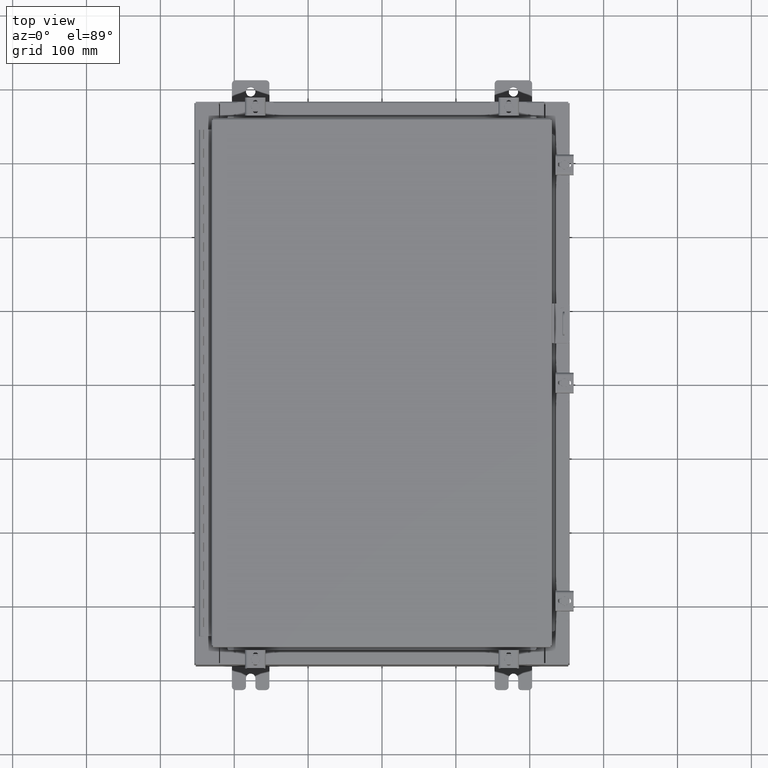
[diagram: clean part render]
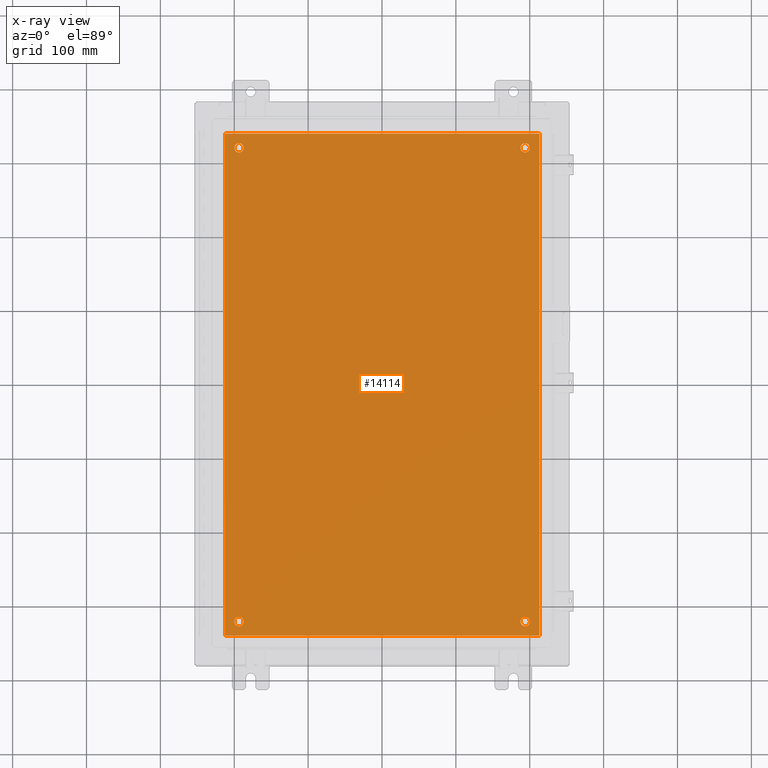
[diagram: x-ray — body ghosted, one internal face saturated and labeled with its STEP entity id]
A machine part, top view, then the same camera in x-ray: the body is ghosted and one INTERNAL B-rep face — a face not visible from any outside direction — is saturated and labeled: STEP entity #14114.
In plain terms, the highlighted planar face has unit normal (0, 0, -1).
Its self-contained STEP definition (entity closure, byte-faithful):
#376 = EDGE_CURVE ( 'NONE', #19509, #31558, #14366, .T. ) ;
#556 = DIRECTION ( 'NONE',  ( -0.0000000000000000000, -0.0000000000000000000, 1.000000000000000000 ) ) ;
#629 = ORIENTED_EDGE ( 'NONE', *, *, #16404, .T. ) ;
#877 = DIRECTION ( 'NONE',  ( -1.000000000000000000, 0.0000000000000000000, 0.0000000000000000000 ) ) ;
#1597 = VECTOR ( 'NONE', #28492, 39.37007874015748100 ) ;
#1710 = FACE_OUTER_BOUND ( 'NONE', #17275, .T. ) ;
#2498 = VERTEX_POINT ( 'NONE', #21852 ) ;
#2599 = FACE_BOUND ( 'NONE', #30375, .T. ) ;
#2881 = VECTOR ( 'NONE', #3680, 39.37007874015748100 ) ;
#2900 = DIRECTION ( 'NONE',  ( -1.000000000000000000, 0.0000000000000000000, 0.0000000000000000000 ) ) ;
#2925 = EDGE_CURVE ( 'NONE', #14400, #8614, #10153, .T. ) ;
#3181 = CARTESIAN_POINT ( 'NONE',  ( 7.625000000000002700, 12.62500000000000200, -0.1039999999999999800 ) ) ;
#3232 = CARTESIAN_POINT ( 'NONE',  ( 8.383000000000002700, -13.38299999999999200, -0.1039999999999992700 ) ) ;
#3373 = VERTEX_POINT ( 'NONE', #10561 ) ;
#3680 = DIRECTION ( 'NONE',  ( 1.000000000000000000, -0.0000000000000000000, -0.0000000000000000000 ) ) ;
#3799 = CARTESIAN_POINT ( 'NONE',  ( 8.500000000000001800, 13.38300000000000300, -0.1040000000000009100 ) ) ;
#4906 = AXIS2_PLACEMENT_3D ( 'NONE', #35739, #6785, #18380 ) ;
#5055 = ORIENTED_EDGE ( 'NONE', *, *, #27282, .T. ) ;
#5654 = DIRECTION ( 'NONE',  ( -0.0000000000000000000, -0.0000000000000000000, 1.000000000000000000 ) ) ;
#5935 = CARTESIAN_POINT ( 'NONE',  ( -7.875000000000002700, -12.62500000000000200, -0.1039999999999999800 ) ) ;
#6785 = DIRECTION ( 'NONE',  ( 0.0000000000000000000, 0.0000000000000000000, -1.000000000000000000 ) ) ;
#7024 = DIRECTION ( 'NONE',  ( -0.0000000000000000000, -0.0000000000000000000, 1.000000000000000000 ) ) ;
#7795 = EDGE_LOOP ( 'NONE', ( #14638, #31215 ) ) ;
#7877 = ORIENTED_EDGE ( 'NONE', *, *, #376, .T. ) ;
#8084 = CARTESIAN_POINT ( 'NONE',  ( 8.383000000000002700, -13.38299999999999200, -0.1039999999999992700 ) ) ;
#8316 = VECTOR ( 'NONE', #9736, 39.37007874015748100 ) ;
#8614 = VERTEX_POINT ( 'NONE', #8977 ) ;
#8885 = CARTESIAN_POINT ( 'NONE',  ( -7.625000000000002700, 12.62500000000000200, -0.1039999999999999800 ) ) ;
#8977 = CARTESIAN_POINT ( 'NONE',  ( -8.383000000000000900, -13.38299999999999400, -0.1040000000000009100 ) ) ;
#9047 = DIRECTION ( 'NONE',  ( 0.0000000000000000000, 1.000000000000000000, 0.0000000000000000000 ) ) ;
#9069 = AXIS2_PLACEMENT_3D ( 'NONE', #24316, #7024, #27244 ) ;
#9152 = LINE ( 'NONE', #3232, #31330 ) ;
#9374 = FACE_BOUND ( 'NONE', #7795, .T. ) ;
#9647 = LINE ( 'NONE', #29737, #2881 ) ;
#9736 = DIRECTION ( 'NONE',  ( -1.000000000000000000, -0.0000000000000000000, -0.0000000000000000000 ) ) ;
#10153 = LINE ( 'NONE', #28447, #1597 ) ;
#10323 = VERTEX_POINT ( 'NONE', #18996 ) ;
#10384 = AXIS2_PLACEMENT_3D ( 'NONE', #35518, #18150, #877 ) ;
#10561 = CARTESIAN_POINT ( 'NONE',  ( -7.375000000000003600, -12.62500000000000200, -0.1039999999999999800 ) ) ;
#10563 = AXIS2_PLACEMENT_3D ( 'NONE', #32604, #15250, #35497 ) ;
#10660 = EDGE_CURVE ( 'NONE', #8614, #35579, #9647, .T. ) ;
#11260 = CIRCLE ( 'NONE', #23232, 0.2499999999999998100 ) ;
#11369 = EDGE_CURVE ( 'NONE', #35579, #22470, #9152, .T. ) ;
#11400 = VERTEX_POINT ( 'NONE', #17859 ) ;
#11781 = DIRECTION ( 'NONE',  ( -1.000000000000000000, 0.0000000000000000000, 0.0000000000000000000 ) ) ;
#12386 = AXIS2_PLACEMENT_3D ( 'NONE', #22945, #5654, #25862 ) ;
#13102 = CIRCLE ( 'NONE', #13567, 0.2499999999999998100 ) ;
#13567 = AXIS2_PLACEMENT_3D ( 'NONE', #8885, #29116, #11781 ) ;
#13730 = CARTESIAN_POINT ( 'NONE',  ( -8.383000000000000900, 13.38300000000000100, -0.1039999999999998300 ) ) ;
#14114 = ADVANCED_FACE ( 'NONE', ( #2599, #9374, #32486, #17057, #1710 ), #18261, .T. ) ;
#14366 = CIRCLE ( 'NONE', #20151, 0.2499999999999987000 ) ;
#14400 = VERTEX_POINT ( 'NONE', #13730 ) ;
#14638 = ORIENTED_EDGE ( 'NONE', *, *, #34093, .T. ) ;
#15250 = DIRECTION ( 'NONE',  ( -0.0000000000000000000, -0.0000000000000000000, 1.000000000000000000 ) ) ;
#16404 = EDGE_CURVE ( 'NONE', #3373, #19881, #21398, .T. ) ;
#16655 = CARTESIAN_POINT ( 'NONE',  ( 7.875000000000001800, -12.62500000000000200, -0.1039999999999999800 ) ) ;
#17057 = FACE_BOUND ( 'NONE', #31377, .T. ) ;
#17275 = EDGE_LOOP ( 'NONE', ( #28918, #32157, #28516, #18737 ) ) ;
#17829 = CARTESIAN_POINT ( 'NONE',  ( -7.625000000000002700, -12.62500000000000200, -0.1039999999999999800 ) ) ;
#17859 = CARTESIAN_POINT ( 'NONE',  ( -7.375000000000003600, 12.62500000000000200, -0.1039999999999999800 ) ) ;
#18150 = DIRECTION ( 'NONE',  ( -0.0000000000000000000, -0.0000000000000000000, 1.000000000000000000 ) ) ;
#18261 = PLANE ( 'NONE',  #4906 ) ;
#18275 = EDGE_CURVE ( 'NONE', #10323, #33781, #35771, .T. ) ;
#18308 = CARTESIAN_POINT ( 'NONE',  ( -7.625000000000002700, -12.62500000000000200, -0.1039999999999999800 ) ) ;
#18380 = DIRECTION ( 'NONE',  ( -1.000000000000000000, 0.0000000000000000000, -0.0000000000000000000 ) ) ;
#18454 = CARTESIAN_POINT ( 'NONE',  ( 7.375000000000004400, 12.62500000000000200, -0.1039999999999999800 ) ) ;
#18737 = ORIENTED_EDGE ( 'NONE', *, *, #11369, .F. ) ;
#18996 = CARTESIAN_POINT ( 'NONE',  ( 7.375000000000004400, -12.62500000000000200, -0.1039999999999999800 ) ) ;
#19509 = VERTEX_POINT ( 'NONE', #18454 ) ;
#19881 = VERTEX_POINT ( 'NONE', #5935 ) ;
#20151 = AXIS2_PLACEMENT_3D ( 'NONE', #3181, #29097, #22755 ) ;
#20162 = DIRECTION ( 'NONE',  ( -0.0000000000000000000, -0.0000000000000000000, 1.000000000000000000 ) ) ;
#20326 = EDGE_CURVE ( 'NONE', #11400, #2498, #30614, .T. ) ;
#20727 = DIRECTION ( 'NONE',  ( -1.000000000000000000, 0.0000000000000000000, 0.0000000000000000000 ) ) ;
#21398 = CIRCLE ( 'NONE', #21934, 0.2499999999999998100 ) ;
#21852 = CARTESIAN_POINT ( 'NONE',  ( -7.875000000000002700, 12.62500000000000200, -0.1039999999999999800 ) ) ;
#21934 = AXIS2_PLACEMENT_3D ( 'NONE', #18308, #20162, #2900 ) ;
#22399 = EDGE_CURVE ( 'NONE', #31558, #19509, #35978, .T. ) ;
#22470 = VERTEX_POINT ( 'NONE', #33206 ) ;
#22755 = DIRECTION ( 'NONE',  ( -1.000000000000000000, 0.0000000000000000000, 0.0000000000000000000 ) ) ;
#22945 = CARTESIAN_POINT ( 'NONE',  ( -7.625000000000002700, 12.62500000000000200, -0.1039999999999999800 ) ) ;
#22999 = EDGE_CURVE ( 'NONE', #22470, #14400, #23679, .T. ) ;
#23158 = CARTESIAN_POINT ( 'NONE',  ( 7.875000000000001800, 12.62500000000000200, -0.1039999999999999800 ) ) ;
#23232 = AXIS2_PLACEMENT_3D ( 'NONE', #17829, #556, #20727 ) ;
#23679 = LINE ( 'NONE', #3799, #8316 ) ;
#24316 = CARTESIAN_POINT ( 'NONE',  ( 7.625000000000002700, 12.62500000000000200, -0.1039999999999999800 ) ) ;
#25566 = ORIENTED_EDGE ( 'NONE', *, *, #20326, .T. ) ;
#25862 = DIRECTION ( 'NONE',  ( -1.000000000000000000, 0.0000000000000000000, 0.0000000000000000000 ) ) ;
#26616 = EDGE_LOOP ( 'NONE', ( #34593, #7877 ) ) ;
#27221 = EDGE_CURVE ( 'NONE', #2498, #11400, #13102, .T. ) ;
#27244 = DIRECTION ( 'NONE',  ( -1.000000000000000000, 0.0000000000000000000, 0.0000000000000000000 ) ) ;
#27282 = EDGE_CURVE ( 'NONE', #19881, #3373, #11260, .T. ) ;
#28447 = CARTESIAN_POINT ( 'NONE',  ( -8.383000000000000900, 13.38300000000000100, -0.1039999999999998300 ) ) ;
#28492 = DIRECTION ( 'NONE',  ( 0.0000000000000000000, -1.000000000000000000, 0.0000000000000000000 ) ) ;
#28516 = ORIENTED_EDGE ( 'NONE', *, *, #22999, .F. ) ;
#28918 = ORIENTED_EDGE ( 'NONE', *, *, #10660, .F. ) ;
#29097 = DIRECTION ( 'NONE',  ( -0.0000000000000000000, -0.0000000000000000000, 1.000000000000000000 ) ) ;
#29116 = DIRECTION ( 'NONE',  ( -0.0000000000000000000, -0.0000000000000000000, 1.000000000000000000 ) ) ;
#29737 = CARTESIAN_POINT ( 'NONE',  ( -8.500000000000000000, -13.38299999999999400, -0.1040000000000009100 ) ) ;
#30375 = EDGE_LOOP ( 'NONE', ( #629, #5055 ) ) ;
#30614 = CIRCLE ( 'NONE', #12386, 0.2499999999999998100 ) ;
#31215 = ORIENTED_EDGE ( 'NONE', *, *, #18275, .T. ) ;
#31330 = VECTOR ( 'NONE', #9047, 39.37007874015748100 ) ;
#31377 = EDGE_LOOP ( 'NONE', ( #25566, #32060 ) ) ;
#31558 = VERTEX_POINT ( 'NONE', #23158 ) ;
#32060 = ORIENTED_EDGE ( 'NONE', *, *, #27221, .T. ) ;
#32157 = ORIENTED_EDGE ( 'NONE', *, *, #2925, .F. ) ;
#32486 = FACE_BOUND ( 'NONE', #26616, .T. ) ;
#32604 = CARTESIAN_POINT ( 'NONE',  ( 7.625000000000002700, -12.62500000000000200, -0.1039999999999999800 ) ) ;
#33206 = CARTESIAN_POINT ( 'NONE',  ( 8.383000000000002700, 13.38300000000000100, -0.1039999999999992700 ) ) ;
#33781 = VERTEX_POINT ( 'NONE', #16655 ) ;
#34093 = EDGE_CURVE ( 'NONE', #33781, #10323, #35398, .T. ) ;
#34593 = ORIENTED_EDGE ( 'NONE', *, *, #22399, .T. ) ;
#35398 = CIRCLE ( 'NONE', #10563, 0.2499999999999987000 ) ;
#35497 = DIRECTION ( 'NONE',  ( -1.000000000000000000, 0.0000000000000000000, 0.0000000000000000000 ) ) ;
#35518 = CARTESIAN_POINT ( 'NONE',  ( 7.625000000000002700, -12.62500000000000200, -0.1039999999999999800 ) ) ;
#35579 = VERTEX_POINT ( 'NONE', #8084 ) ;
#35739 = CARTESIAN_POINT ( 'NONE',  ( 0.0000000000000000000, 0.0000000000000000000, -0.1039999999999999800 ) ) ;
#35771 = CIRCLE ( 'NONE', #10384, 0.2499999999999987000 ) ;
#35978 = CIRCLE ( 'NONE', #9069, 0.2499999999999987000 ) ;